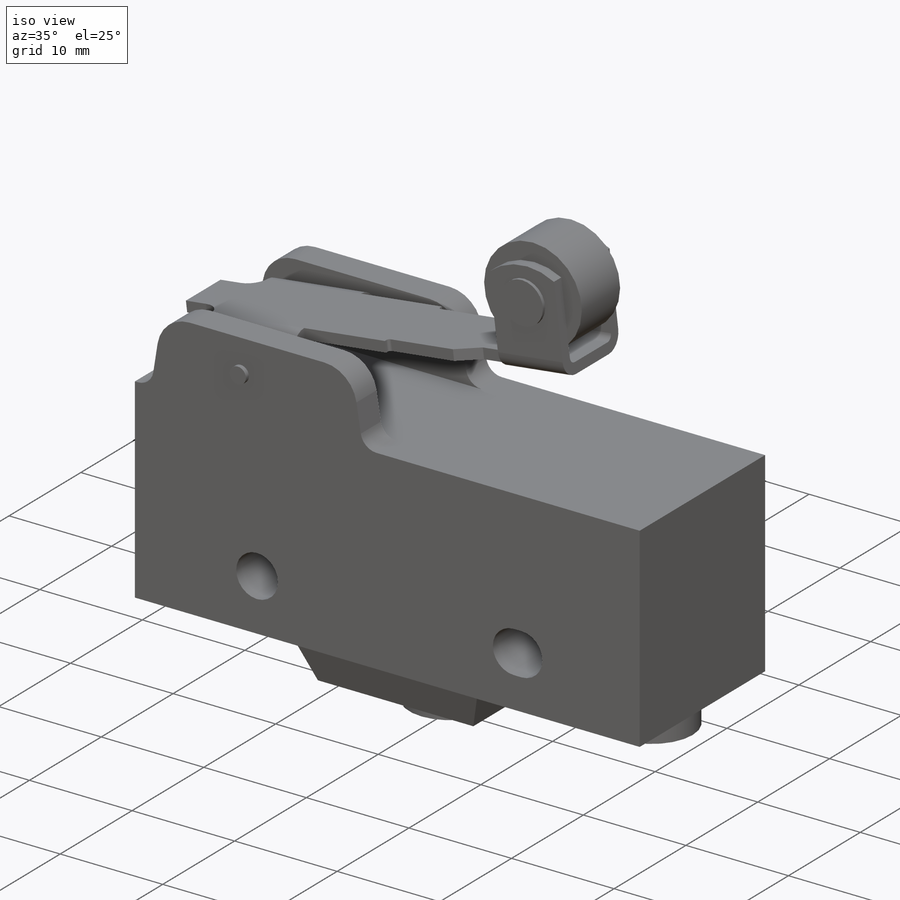
[diagram: iso view]
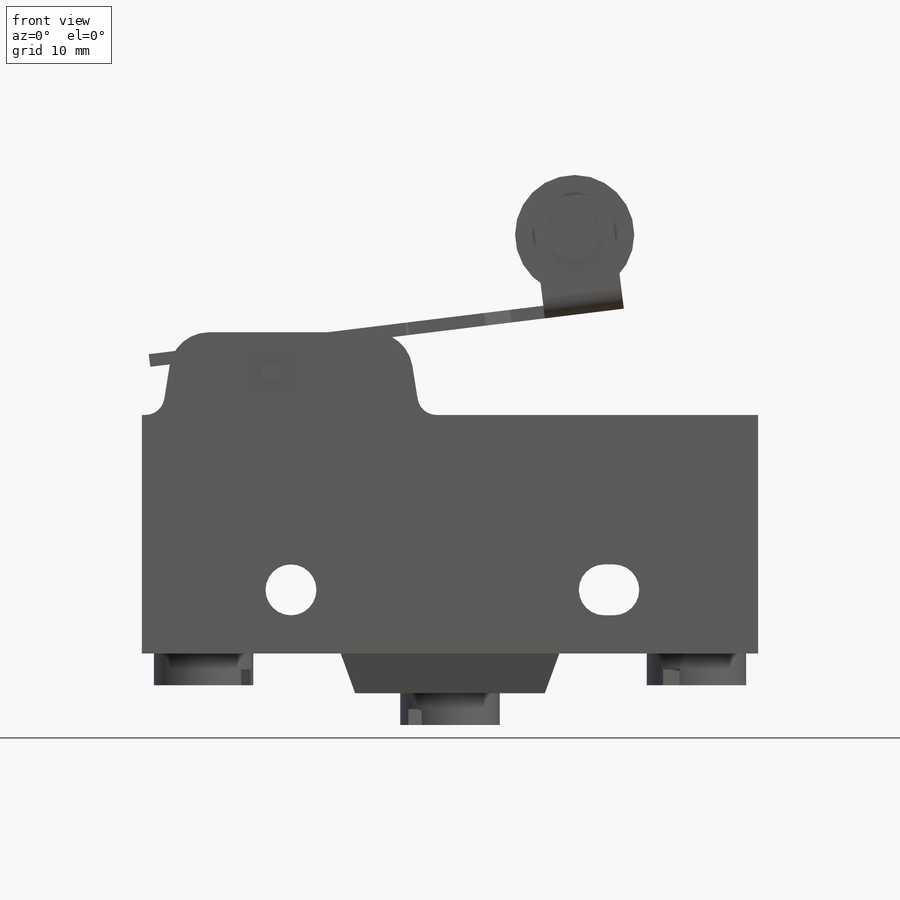
[diagram: front view]
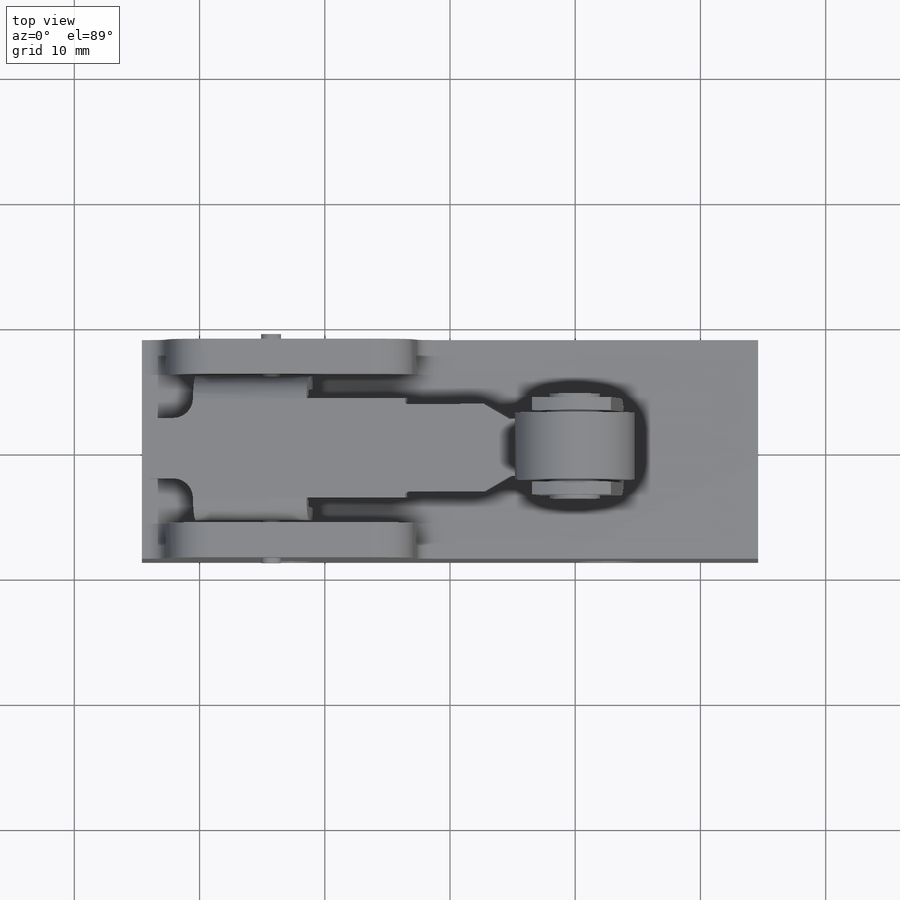
[diagram: top view]
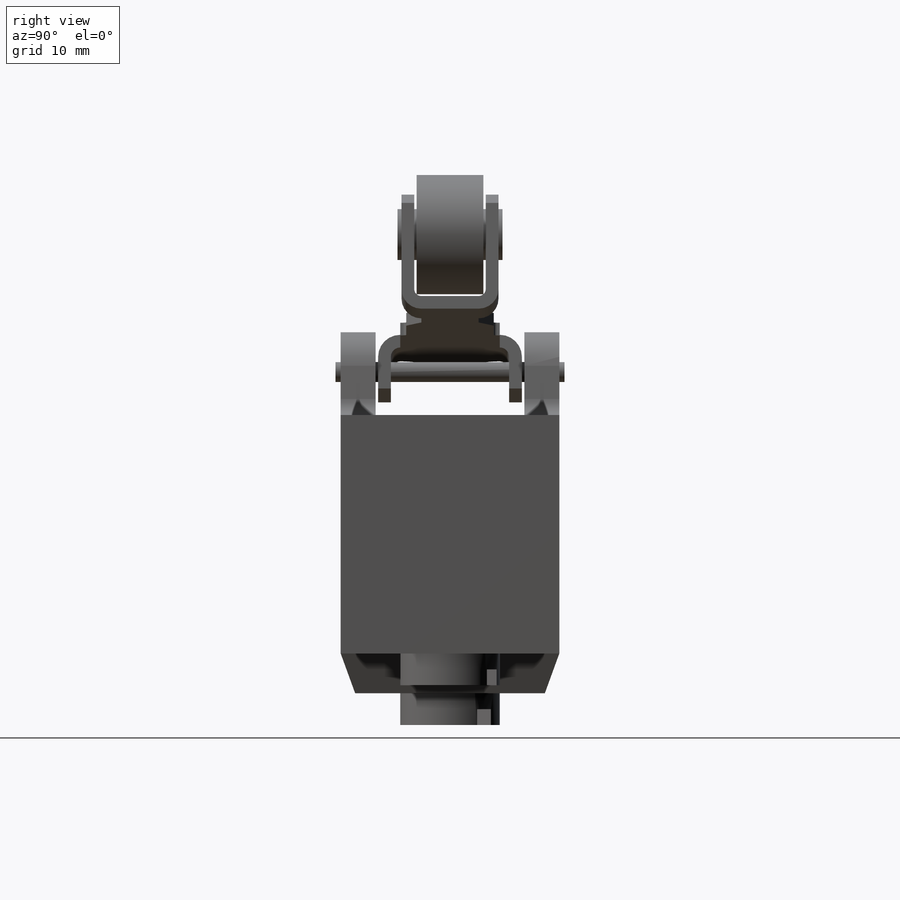
[diagram: right view]
SOLIDWORKS PART (.sldprt)
format: sldprt  version: not decoded by parser v0  size: 1,275,904 bytes
history: native  units: mm
features: sketch x18, extrude x12, cut_extrude x6, fillet x2, material x1, mirror x1 (+16 scaffold rows collapsed)
feature tree (56):
  scaffold x16  (default folders/planes/origin — collapsed)
  material  "Material <not specified>"
  sketch  "Sketch1"  dims[D1=17.4625mm D2=49.2125mm]
  extrude  "Extrude1"  Depth=19.05mm
  sketch  "Sketch2"  dims[D1=20.6375mm D2=18.542mm D3=6.604mm D4=1.5875mm]
  extrude  "Extrude2"  Depth=2.794mm
  mirror  "Mirror1"
  fillet  "Fillet1"  Radius=1.524mm
  fillet  "Fillet2"  Radius=3.175mm
  sketch  "Sketch3"
  extrude  "Extrude3"  Depth=3.175mm
  sketch  "Sketch4"  dims[D1=1.5875mm D2=~10.31875mm D3=3.175mm]
  extrude  "Extrude4"  Depth=17.4625mm
  sketch  "Sketch5"  dims[c1.D1=38.1mm c1.D2=9.525mm c1.D3=~37.833074mm c2.D3=7.0deg c2.D4=1.5875mm c2.D5=1.016mm]
  extrude  "Extrude5"  Depth=7.9375mm
  sketch  "Sketch6"  dims[D1=4.318mm]
  extrude  "Extrude6"  Depth=12.7mm
  sketch  "Sketch7"  dims[c1.D2=1.5875mm c1.D4=0.254mm c1.D1=3.556mm c1.D3=4.826mm c1.D5=17.4625mm c1.D6=6.35mm c1.D7=4.572mm c1.D8=6.985mm c1.D9=~2.502335mm c2.D9=30.0deg]
  cut_extrude  "Cut-Extrude1"  Depth=4.7625mm
  sketch  "Sketch8"  dims[D1=1.5875mm D2=9.525mm]
  extrude  "Extrude7"  Depth=6.35mm
  sketch  "Sketch9"  dims[c1.D1=~6.297769mm c2.D1=~0.362739deg c3.D1=1.016mm]
  cut_extrude  "Cut-Extrude2"  [1 undecoded]
  sketch  "Sketch10"  dims[D1=9.525mm D2=3.175mm]
  extrude  "Extrude8"  Depth=5.334mm
  sketch  "Sketch11"  dims[D1=4.064mm]
  extrude  "Extrude9"  Depth=8.382mm
  sketch  "Sketch12"  dims[D1=7.9375mm D2=19.685mm]
  extrude  "Extrude10"  Depth=2.54mm
  sketch  "Sketch13"
  extrude  "Extrude11"  Depth=2.54mm
  sketch  "Sketch14"
  extrude  "Extrude12"  Depth=18.288mm
  sketch  "Sketch15"  dims[D1=4.064mm D2=25.4mm D3=5.08mm D4=0.762mm]
  cut_extrude  "Cut-Extrude3"  Depth=152.4mm
  sketch  "Sketch16"  dims[D1=1.524mm]
  cut_extrude  "Cut-Extrude4"  Depth=1.27mm
  sketch  "Sketch17"  dims[D1=1.524mm]
  cut_extrude  "Cut-Extrude5"  Depth=1.27mm
  sketch  "Sketch18"
  cut_extrude  "Cut-Extrude6"  Depth=0.127mm Thickness=3.03784mm
decode coverage: 33 of 39 modeling features carry decoded parameters
note: ~ marks probable driven/reference dimensions
note: 1 parameter value undecoded
note: suppression state not decoded; provenance and decode notes live in map.json
